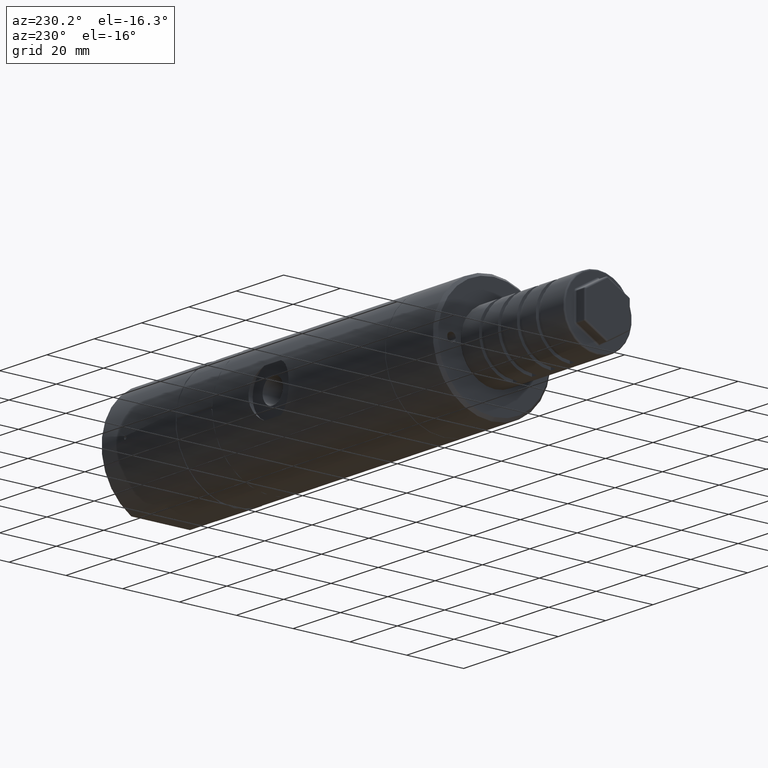
[diagram: clean part render]
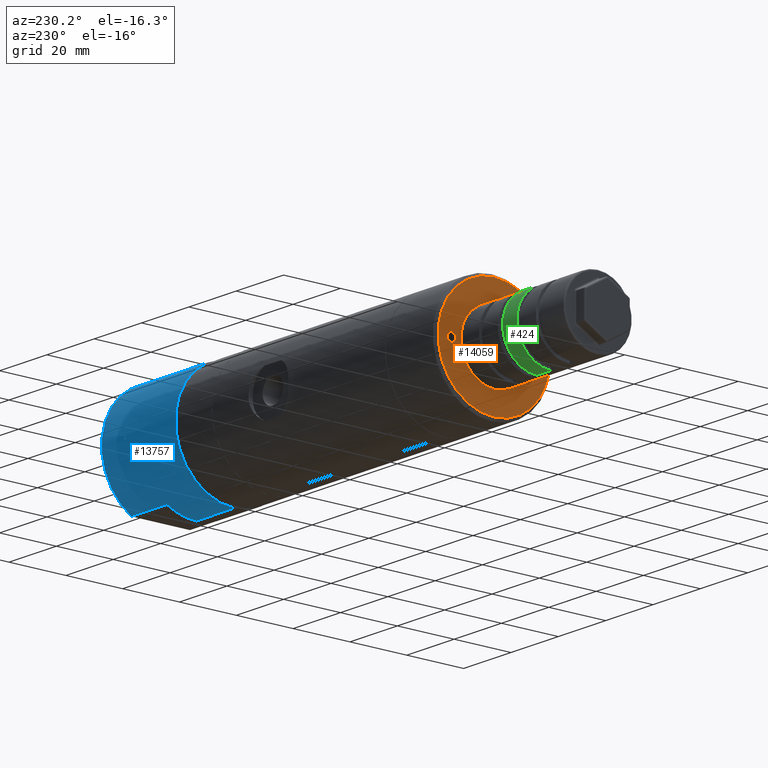
[diagram: same view with three faces highlighted in distinct colors, each labeled with its STEP entity id]
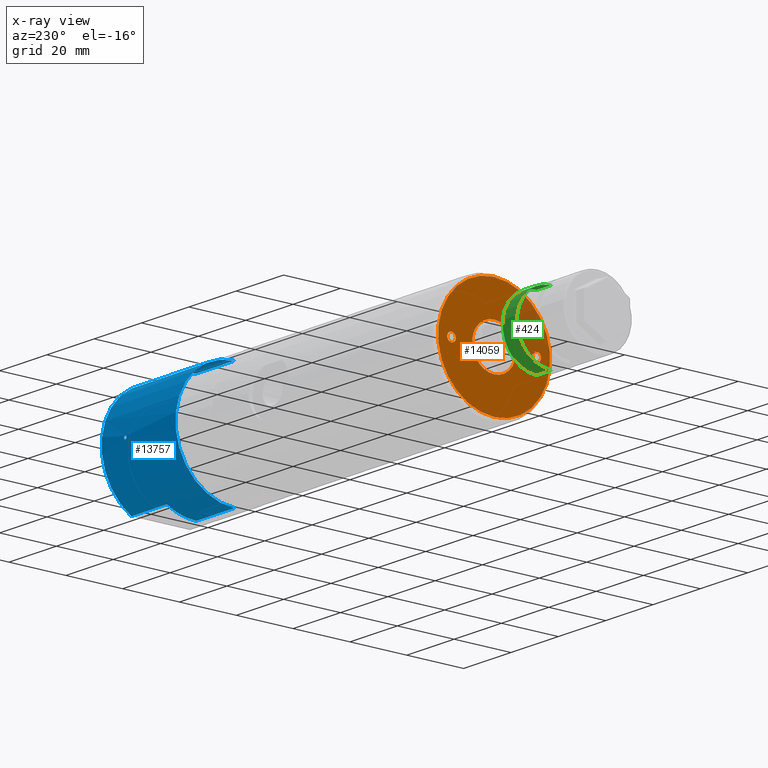
[diagram: x-ray of the same camera — body ghosted, the three highlighted faces saturated]
A machine part, auxiliary view with three faces highlighted in distinct colors.
The next image is the same camera in x-ray (body ghosted, the three faces saturated) — at least one of them is partly hidden behind the body in this view.
Their STEP definitions:

[orange] entity #14059 — the highlighted planar face has unit normal (-1, 0, 0).
#464 = VERTEX_POINT ( 'NONE', #7309 ) ;
#530 = DIRECTION ( 'NONE',  ( -1.000000000000000000, 0.0000000000000000000, 0.0000000000000000000 ) ) ;
#821 = EDGE_CURVE ( 'NONE', #7662, #8213, #11472, .T. ) ;
#872 = DIRECTION ( 'NONE',  ( 1.000000000000000000, 0.0000000000000000000, 0.0000000000000000000 ) ) ;
#913 = VERTEX_POINT ( 'NONE', #4446 ) ;
#997 = FACE_BOUND ( 'NONE', #9250, .T. ) ;
#1698 = EDGE_CURVE ( 'NONE', #5370, #16255, #13579, .T. ) ;
#1905 = FACE_OUTER_BOUND ( 'NONE', #12259, .T. ) ;
#1931 = EDGE_LOOP ( 'NONE', ( #5133, #14287 ) ) ;
#1994 = DIRECTION ( 'NONE',  ( 0.0000000000000000000, 0.0000000000000000000, 1.000000000000000000 ) ) ;
#2235 = AXIS2_PLACEMENT_3D ( 'NONE', #13592, #530, #16517 ) ;
#2476 = ORIENTED_EDGE ( 'NONE', *, *, #821, .F. ) ;
#3426 = CARTESIAN_POINT ( 'NONE',  ( -140.9000000000000100, 15.00000000000000000, -1.500000000000000000 ) ) ;
#3510 = EDGE_CURVE ( 'NONE', #464, #7442, #5842, .T. ) ;
#3809 = VERTEX_POINT ( 'NONE', #7743 ) ;
#3879 = EDGE_CURVE ( 'NONE', #913, #3809, #15428, .T. ) ;
#3914 = EDGE_CURVE ( 'NONE', #16255, #5370, #14051, .T. ) ;
#4192 = ORIENTED_EDGE ( 'NONE', *, *, #1698, .T. ) ;
#4436 = CARTESIAN_POINT ( 'NONE',  ( -140.9000000000000100, 0.0000000000000000000, 0.0000000000000000000 ) ) ;
#4446 = CARTESIAN_POINT ( 'NONE',  ( -140.9000000000000100, 0.0000000000000000000, -7.700000000000000200 ) ) ;
#4695 = ORIENTED_EDGE ( 'NONE', *, *, #5030, .T. ) ;
#4712 = DIRECTION ( 'NONE',  ( 0.0000000000000000000, 0.0000000000000000000, 1.000000000000000000 ) ) ;
#5030 = EDGE_CURVE ( 'NONE', #3809, #913, #18106, .T. ) ;
#5074 = DIRECTION ( 'NONE',  ( 1.000000000000000000, 0.0000000000000000000, 0.0000000000000000000 ) ) ;
#5133 = ORIENTED_EDGE ( 'NONE', *, *, #3510, .F. ) ;
#5370 = VERTEX_POINT ( 'NONE', #7182 ) ;
#5411 = DIRECTION ( 'NONE',  ( 0.0000000000000000000, 0.0000000000000000000, 1.000000000000000000 ) ) ;
#5584 = DIRECTION ( 'NONE',  ( 0.0000000000000000000, 0.0000000000000000000, -1.000000000000000000 ) ) ;
#5842 = CIRCLE ( 'NONE', #16377, 1.500000000000000000 ) ;
#6199 = DIRECTION ( 'NONE',  ( 0.0000000000000000000, 0.0000000000000000000, 1.000000000000000000 ) ) ;
#6422 = PLANE ( 'NONE',  #2235 ) ;
#6602 = CARTESIAN_POINT ( 'NONE',  ( -140.9000000000000100, 0.0000000000000000000, 0.0000000000000000000 ) ) ;
#6703 = AXIS2_PLACEMENT_3D ( 'NONE', #13830, #5074, #5584 ) ;
#6991 = CARTESIAN_POINT ( 'NONE',  ( -140.9000000000000100, 15.00000000000000000, 0.0000000000000000000 ) ) ;
#7182 = CARTESIAN_POINT ( 'NONE',  ( -140.9000000000000100, 2.479909768273390300E-015, 19.75000000000000000 ) ) ;
#7309 = CARTESIAN_POINT ( 'NONE',  ( -140.9000000000000100, -15.00000000000000000, 1.500000000000000000 ) ) ;
#7442 = VERTEX_POINT ( 'NONE', #13842 ) ;
#7570 = DIRECTION ( 'NONE',  ( -1.000000000000000000, 0.0000000000000000000, 0.0000000000000000000 ) ) ;
#7662 = VERTEX_POINT ( 'NONE', #3426 ) ;
#7743 = CARTESIAN_POINT ( 'NONE',  ( -140.9000000000000100, 9.429780353434619000E-016, 7.700000000000000200 ) ) ;
#7910 = AXIS2_PLACEMENT_3D ( 'NONE', #9097, #17633, #6199 ) ;
#8213 = VERTEX_POINT ( 'NONE', #14820 ) ;
#8432 = DIRECTION ( 'NONE',  ( -1.000000000000000000, 0.0000000000000000000, 0.0000000000000000000 ) ) ;
#8928 = FACE_BOUND ( 'NONE', #1931, .T. ) ;
#9097 = CARTESIAN_POINT ( 'NONE',  ( -140.9000000000000100, 15.00000000000000000, 0.0000000000000000000 ) ) ;
#9178 = EDGE_LOOP ( 'NONE', ( #11194, #2476 ) ) ;
#9250 = EDGE_LOOP ( 'NONE', ( #18531, #4695 ) ) ;
#9544 = CARTESIAN_POINT ( 'NONE',  ( -140.9000000000000100, 0.0000000000000000000, 0.0000000000000000000 ) ) ;
#9701 = ORIENTED_EDGE ( 'NONE', *, *, #3914, .T. ) ;
#10764 = DIRECTION ( 'NONE',  ( 0.0000000000000000000, 0.0000000000000000000, 1.000000000000000000 ) ) ;
#11194 = ORIENTED_EDGE ( 'NONE', *, *, #11339, .F. ) ;
#11339 = EDGE_CURVE ( 'NONE', #8213, #7662, #14080, .T. ) ;
#11472 = CIRCLE ( 'NONE', #18179, 1.500000000000000000 ) ;
#12151 = DIRECTION ( 'NONE',  ( -1.000000000000000000, 0.0000000000000000000, 0.0000000000000000000 ) ) ;
#12259 = EDGE_LOOP ( 'NONE', ( #9701, #4192 ) ) ;
#12380 = AXIS2_PLACEMENT_3D ( 'NONE', #9544, #872, #13566 ) ;
#12761 = FACE_BOUND ( 'NONE', #9178, .T. ) ;
#13566 = DIRECTION ( 'NONE',  ( 0.0000000000000000000, 0.0000000000000000000, -1.000000000000000000 ) ) ;
#13579 = CIRCLE ( 'NONE', #18544, 19.75000000000000000 ) ;
#13592 = CARTESIAN_POINT ( 'NONE',  ( -140.9000000000000100, -2.571673343026989900E-015, 0.0000000000000000000 ) ) ;
#13830 = CARTESIAN_POINT ( 'NONE',  ( -140.9000000000000100, 0.0000000000000000000, 0.0000000000000000000 ) ) ;
#13842 = CARTESIAN_POINT ( 'NONE',  ( -140.9000000000000100, -15.00000000000000000, -1.500000000000000000 ) ) ;
#14051 = CIRCLE ( 'NONE', #14421, 19.75000000000000000 ) ;
#14059 = ADVANCED_FACE ( 'NONE', ( #1905, #12761, #8928, #997 ), #6422, .T. ) ;
#14080 = CIRCLE ( 'NONE', #7910, 1.500000000000000000 ) ;
#14266 = DIRECTION ( 'NONE',  ( 0.0000000000000000000, 0.0000000000000000000, 1.000000000000000000 ) ) ;
#14287 = ORIENTED_EDGE ( 'NONE', *, *, #15730, .F. ) ;
#14421 = AXIS2_PLACEMENT_3D ( 'NONE', #4436, #17267, #14266 ) ;
#14748 = CARTESIAN_POINT ( 'NONE',  ( -140.9000000000000100, -15.00000000000000000, 0.0000000000000000000 ) ) ;
#14820 = CARTESIAN_POINT ( 'NONE',  ( -140.9000000000000100, 15.00000000000000000, 1.500000000000000000 ) ) ;
#14946 = DIRECTION ( 'NONE',  ( -1.000000000000000000, 0.0000000000000000000, 0.0000000000000000000 ) ) ;
#14957 = AXIS2_PLACEMENT_3D ( 'NONE', #16203, #7570, #4712 ) ;
#15428 = CIRCLE ( 'NONE', #6703, 7.700000000000000200 ) ;
#15730 = EDGE_CURVE ( 'NONE', #7442, #464, #17515, .T. ) ;
#16203 = CARTESIAN_POINT ( 'NONE',  ( -140.9000000000000100, -15.00000000000000000, 0.0000000000000000000 ) ) ;
#16255 = VERTEX_POINT ( 'NONE', #18330 ) ;
#16377 = AXIS2_PLACEMENT_3D ( 'NONE', #14748, #14946, #1994 ) ;
#16517 = DIRECTION ( 'NONE',  ( 0.0000000000000000000, 0.0000000000000000000, 1.000000000000000000 ) ) ;
#17267 = DIRECTION ( 'NONE',  ( -1.000000000000000000, 0.0000000000000000000, 0.0000000000000000000 ) ) ;
#17515 = CIRCLE ( 'NONE', #14957, 1.500000000000000000 ) ;
#17633 = DIRECTION ( 'NONE',  ( -1.000000000000000000, 0.0000000000000000000, 0.0000000000000000000 ) ) ;
#18106 = CIRCLE ( 'NONE', #12380, 7.700000000000000200 ) ;
#18179 = AXIS2_PLACEMENT_3D ( 'NONE', #6991, #8432, #5411 ) ;
#18330 = CARTESIAN_POINT ( 'NONE',  ( -140.9000000000000100, 0.0000000000000000000, -19.75000000000000000 ) ) ;
#18531 = ORIENTED_EDGE ( 'NONE', *, *, #3879, .T. ) ;
#18544 = AXIS2_PLACEMENT_3D ( 'NONE', #6602, #12151, #10764 ) ;

[blue] entity #13757 — the highlighted cylindrical surface (partial cylindrical patch) has radius 20.75 mm, axis along (1, 0, 0).
#156 = CARTESIAN_POINT ( 'NONE',  ( -10.44604755749227800, 20.74856506021907200, 0.2609280402185664100 ) ) ;
#207 = VERTEX_POINT ( 'NONE', #6639 ) ;
#339 = CARTESIAN_POINT ( 'NONE',  ( -10.13211990749544900, 20.74397502890900200, 0.4999999999999901200 ) ) ;
#388 = CARTESIAN_POINT ( 'NONE',  ( -15.00000000000000000, 0.0000000000000000000, -20.75000000000000000 ) ) ;
#656 = EDGE_CURVE ( 'NONE', #1961, #207, #5594, .T. ) ;
#677 = CARTESIAN_POINT ( 'NONE',  ( 0.0000000000000000000, 0.0000000000000000000, -20.75000000000000000 ) ) ;
#1180 = CARTESIAN_POINT ( 'NONE',  ( 0.0000000000000000000, 10.32291141103128000, -18.00000000000000000 ) ) ;
#1194 = CARTESIAN_POINT ( 'NONE',  ( -31.19999999999999900, 2.541142108230757900E-015, 20.75000000000000000 ) ) ;
#1349 = VERTEX_POINT ( 'NONE', #6614 ) ;
#1525 = DIRECTION ( 'NONE',  ( 0.0000000000000000000, 0.0000000000000000000, -1.000000000000000000 ) ) ;
#1536 = AXIS2_PLACEMENT_3D ( 'NONE', #2053, #3325, #4916 ) ;
#1643 = EDGE_CURVE ( 'NONE', #11486, #1961, #2519, .T. ) ;
#1714 = CARTESIAN_POINT ( 'NONE',  ( -10.26104699346439600, 20.74541242341451100, -0.4459296760356511500 ) ) ;
#1720 = CARTESIAN_POINT ( 'NONE',  ( -9.999999999999737100, 20.74397502890893500, -0.5000000000026035800 ) ) ;
#1798 = CARTESIAN_POINT ( 'NONE',  ( 0.0000000000000000000, 0.0000000000000000000, 0.0000000000000000000 ) ) ;
#1961 = VERTEX_POINT ( 'NONE', #1194 ) ;
#2053 = CARTESIAN_POINT ( 'NONE',  ( -15.00000000000000000, 0.0000000000000000000, 0.0000000000000000000 ) ) ;
#2177 = EDGE_CURVE ( 'NONE', #207, #4132, #7503, .T. ) ;
#2192 = CARTESIAN_POINT ( 'NONE',  ( 0.0000000000000000000, 0.0000000000000000000, 0.0000000000000000000 ) ) ;
#2198 = B_SPLINE_CURVE_WITH_KNOTS ( 'NONE', 3,
 ( #16127, #5854, #1714, #4630, #7549, #15954, #156, #17652, #339, #2994 ),
 .UNSPECIFIED., .F., .F.,
 ( 4, 2, 2, 2, 4 ),
 ( 0.001563285098166953300, 0.001954017975861652900, 0.002344750853556352800, 0.002735483731251052300, 0.003126216608945752100 ),
 .UNSPECIFIED. ) ;
#2519 = CIRCLE ( 'NONE', #16961, 20.75000000000000000 ) ;
#2574 = ORIENTED_EDGE ( 'NONE', *, *, #9472, .T. ) ;
#2863 = CARTESIAN_POINT ( 'NONE',  ( -31.19999999999999900, 0.0000000000000000000, 0.0000000000000000000 ) ) ;
#2923 = DIRECTION ( 'NONE',  ( 1.000000000000000000, 0.0000000000000000000, 0.0000000000000000000 ) ) ;
#2994 = CARTESIAN_POINT ( 'NONE',  ( -10.00000000000000000, 20.74397502890899900, 0.4999999999999900100 ) ) ;
#3135 = DIRECTION ( 'NONE',  ( 1.000000000000000000, 0.0000000000000000000, 0.0000000000000000000 ) ) ;
#3282 = CARTESIAN_POINT ( 'NONE',  ( -15.00000000000000000, 0.0000000000000000000, 0.0000000000000000000 ) ) ;
#3325 = DIRECTION ( 'NONE',  ( -1.000000000000000000, -0.0000000000000000000, -0.0000000000000000000 ) ) ;
#3388 = CARTESIAN_POINT ( 'NONE',  ( -10.00000000000000000, 20.74397502890899900, 0.4999999999999900100 ) ) ;
#3411 = DIRECTION ( 'NONE',  ( -1.000000000000000000, -0.0000000000000000000, -0.0000000000000000000 ) ) ;
#3534 = AXIS2_PLACEMENT_3D ( 'NONE', #3282, #3411, #12001 ) ;
#3719 = CIRCLE ( 'NONE', #6011, 20.75000000000000000 ) ;
#4050 = ORIENTED_EDGE ( 'NONE', *, *, #8139, .F. ) ;
#4132 = VERTEX_POINT ( 'NONE', #14231 ) ;
#4179 = VECTOR ( 'NONE', #10794, 1000.000000000000000 ) ;
#4630 = CARTESIAN_POINT ( 'NONE',  ( -10.44556131245091800, 20.74855455129144500, -0.2616752292691743600 ) ) ;
#4916 = DIRECTION ( 'NONE',  ( 0.0000000000000000000, 0.0000000000000000000, -1.000000000000000000 ) ) ;
#4972 = VERTEX_POINT ( 'NONE', #12309 ) ;
#5175 = FACE_BOUND ( 'NONE', #10076, .T. ) ;
#5419 = CARTESIAN_POINT ( 'NONE',  ( -9.553030435657641200, 20.74858003781440300, -0.2600923847629472200 ) ) ;
#5468 = ORIENTED_EDGE ( 'NONE', *, *, #14866, .F. ) ;
#5594 = LINE ( 'NONE', #16384, #11002 ) ;
#5854 = CARTESIAN_POINT ( 'NONE',  ( -10.13050407112609500, 20.74397502890899500, -0.5000000000001018100 ) ) ;
#6011 = AXIS2_PLACEMENT_3D ( 'NONE', #1798, #3135, #7632 ) ;
#6325 = FACE_OUTER_BOUND ( 'NONE', #7663, .T. ) ;
#6614 = CARTESIAN_POINT ( 'NONE',  ( 0.0000000000000000000, 10.32291141103128000, 18.00000000000000000 ) ) ;
#6639 = CARTESIAN_POINT ( 'NONE',  ( -15.00000000000000000, 2.541142108230757900E-015, 20.75000000000000000 ) ) ;
#6732 = EDGE_CURVE ( 'NONE', #13668, #4972, #13081, .T. ) ;
#6731 = AXIS2_PLACEMENT_3D ( 'NONE', #2192, #9534, #16597 ) ;
#6929 = CARTESIAN_POINT ( 'NONE',  ( -9.739693090617528500, 20.74539832062074800, -0.4468446631524425900 ) ) ;
#7503 = CIRCLE ( 'NONE', #3534, 20.75000000000000000 ) ;
#7549 = CARTESIAN_POINT ( 'NONE',  ( -10.49988927261461700, 20.74999733187117100, -0.1322965031529124100 ) ) ;
#7632 = DIRECTION ( 'NONE',  ( 0.0000000000000000000, 0.0000000000000000000, -1.000000000000000000 ) ) ;
#7663 = EDGE_LOOP ( 'NONE', ( #11455, #15751, #12199, #2574, #12730, #14970, #13390, #4050 ) ) ;
#7819 = CARTESIAN_POINT ( 'NONE',  ( -9.499953741187557200, 20.75000111467011300, -0.1302750828207010800 ) ) ;
#8139 = EDGE_CURVE ( 'NONE', #11486, #16062, #12323, .T. ) ;
#8530 = DIRECTION ( 'NONE',  ( -1.000000000000000000, -0.0000000000000000000, -0.0000000000000000000 ) ) ;
#9472 = EDGE_CURVE ( 'NONE', #4132, #1349, #11381, .T. ) ;
#9534 = DIRECTION ( 'NONE',  ( 1.000000000000000000, 0.0000000000000000000, 0.0000000000000000000 ) ) ;
#10076 = EDGE_LOOP ( 'NONE', ( #15511, #5468 ) ) ;
#10794 = DIRECTION ( 'NONE',  ( 1.000000000000000000, 0.0000000000000000000, 0.0000000000000000000 ) ) ;
#11002 = VECTOR ( 'NONE', #12213, 1000.000000000000000 ) ;
#11381 = LINE ( 'NONE', #15817, #12735 ) ;
#11455 = ORIENTED_EDGE ( 'NONE', *, *, #1643, .T. ) ;
#11486 = VERTEX_POINT ( 'NONE', #11929 ) ;
#11590 = CARTESIAN_POINT ( 'NONE',  ( -9.869466404486766800, 20.74397502890900600, -0.4999999999998783800 ) ) ;
#11813 = CARTESIAN_POINT ( 'NONE',  ( -9.738631353495502900, 20.74541651414586200, 0.4457711486193378100 ) ) ;
#11929 = CARTESIAN_POINT ( 'NONE',  ( -31.19999999999999900, 0.0000000000000000000, -20.75000000000000000 ) ) ;
#12001 = DIRECTION ( 'NONE',  ( 0.0000000000000000000, 0.0000000000000000000, -1.000000000000000000 ) ) ;
#12199 = ORIENTED_EDGE ( 'NONE', *, *, #2177, .T. ) ;
#12213 = DIRECTION ( 'NONE',  ( 1.000000000000000000, 0.0000000000000000000, 0.0000000000000000000 ) ) ;
#12309 = CARTESIAN_POINT ( 'NONE',  ( -15.00000000000000000, 10.32291141103128000, -18.00000000000000000 ) ) ;
#12323 = LINE ( 'NONE', #677, #4179 ) ;
#12487 = EDGE_CURVE ( 'NONE', #18681, #18112, #17766, .T. ) ;
#12632 = VECTOR ( 'NONE', #8530, 1000.000000000000000 ) ;
#12730 = ORIENTED_EDGE ( 'NONE', *, *, #15690, .F. ) ;
#12735 = VECTOR ( 'NONE', #17201, 1000.000000000000000 ) ;
#13081 = LINE ( 'NONE', #1180, #12632 ) ;
#13390 = ORIENTED_EDGE ( 'NONE', *, *, #18655, .T. ) ;
#13668 = VERTEX_POINT ( 'NONE', #17887 ) ;
#13757 = ADVANCED_FACE ( 'NONE', ( #5175, #6325 ), #15214, .T. ) ;
#13954 = CARTESIAN_POINT ( 'NONE',  ( -10.00000000000000000, 20.74397502890899900, 0.4999999999999900100 ) ) ;
#14025 = CIRCLE ( 'NONE', #1536, 20.75000000000000000 ) ;
#14231 = CARTESIAN_POINT ( 'NONE',  ( -15.00000000000000000, 10.32291141103128000, 18.00000000000000000 ) ) ;
#14866 = EDGE_CURVE ( 'NONE', #18112, #18681, #2198, .T. ) ;
#14970 = ORIENTED_EDGE ( 'NONE', *, *, #6732, .T. ) ;
#15214 = CYLINDRICAL_SURFACE ( 'NONE', #6731, 20.75000000000000000 ) ;
#15511 = ORIENTED_EDGE ( 'NONE', *, *, #12487, .F. ) ;
#15690 = EDGE_CURVE ( 'NONE', #13668, #1349, #3719, .T. ) ;
#15751 = ORIENTED_EDGE ( 'NONE', *, *, #656, .T. ) ;
#15817 = CARTESIAN_POINT ( 'NONE',  ( 0.0000000000000000000, 10.32291141103128000, 18.00000000000000000 ) ) ;
#15954 = CARTESIAN_POINT ( 'NONE',  ( -10.50011037601901300, 20.75000265966217600, 0.1314582116863800600 ) ) ;
#16008 = CARTESIAN_POINT ( 'NONE',  ( -9.999999999999737100, 20.74397502890893500, -0.5000000000026035800 ) ) ;
#16062 = VERTEX_POINT ( 'NONE', #388 ) ;
#16127 = CARTESIAN_POINT ( 'NONE',  ( -9.999999999999737100, 20.74397502890893500, -0.5000000000026035800 ) ) ;
#16359 = CARTESIAN_POINT ( 'NONE',  ( -9.554135325371785100, 20.74856110876369500, 0.2612090699720744900 ) ) ;
#16384 = CARTESIAN_POINT ( 'NONE',  ( 0.0000000000000000000, 2.541142108230757900E-015, 20.75000000000000000 ) ) ;
#16597 = DIRECTION ( 'NONE',  ( 0.0000000000000000000, 0.0000000000000000000, -1.000000000000000000 ) ) ;
#16961 = AXIS2_PLACEMENT_3D ( 'NONE', #2863, #2923, #1525 ) ;
#17201 = DIRECTION ( 'NONE',  ( 1.000000000000000000, 0.0000000000000000000, 0.0000000000000000000 ) ) ;
#17255 = CARTESIAN_POINT ( 'NONE',  ( -9.867850202562033600, 20.74397502890900600, 0.4999999999999899500 ) ) ;
#17652 = CARTESIAN_POINT ( 'NONE',  ( -10.26156081116187800, 20.74541895678499900, 0.4456767974457160900 ) ) ;
#17688 = CARTESIAN_POINT ( 'NONE',  ( -9.500046321769595200, 20.74999888381284700, 0.1306299268167532800 ) ) ;
#17766 = B_SPLINE_CURVE_WITH_KNOTS ( 'NONE', 3,
 ( #13954, #17255, #11813, #16359, #17688, #7819, #5419, #6929, #11590, #1720 ),
 .UNSPECIFIED., .F., .F.,
 ( 4, 2, 2, 2, 4 ),
 ( 0.0000000000000000000, 0.0003908212745417383200, 0.0007816425490834766400, 0.001172463823625215000, 0.001563285098166953300 ),
 .UNSPECIFIED. ) ;
#17887 = CARTESIAN_POINT ( 'NONE',  ( 0.0000000000000000000, 10.32291141103128000, -18.00000000000000000 ) ) ;
#18112 = VERTEX_POINT ( 'NONE', #16008 ) ;
#18655 = EDGE_CURVE ( 'NONE', #4972, #16062, #14025, .T. ) ;
#18681 = VERTEX_POINT ( 'NONE', #3388 ) ;

[green] entity #424 — the highlighted cylindrical surface (partial cylindrical patch) has radius 12 mm, axis along (1, 0, 0).
#424 = ADVANCED_FACE ( 'NONE', ( #6718 ), #9898, .T. ) ;
#1407 = CARTESIAN_POINT ( 'NONE',  ( -184.9000000000000100, 0.0000000000000000000, 0.0000000000000000000 ) ) ;
#2344 = CIRCLE ( 'NONE', #15806, 12.00000000000000000 ) ;
#2706 = AXIS2_PLACEMENT_3D ( 'NONE', #7473, #14764, #11746 ) ;
#2913 = VECTOR ( 'NONE', #7132, 1000.000000000000000 ) ;
#3188 = CARTESIAN_POINT ( 'NONE',  ( -184.9000000000000100, -3.330669073875468400E-015, -12.00000000000000000 ) ) ;
#4013 = CARTESIAN_POINT ( 'NONE',  ( -184.9000000000000100, 4.800245232852292200E-015, 12.00000000000000000 ) ) ;
#4188 = DIRECTION ( 'NONE',  ( -1.000000000000000000, 0.0000000000000000000, 0.0000000000000000000 ) ) ;
#4264 = DIRECTION ( 'NONE',  ( 0.0000000000000000000, -2.775557561562890400E-016, -1.000000000000000000 ) ) ;
#5493 = ORIENTED_EDGE ( 'NONE', *, *, #10063, .T. ) ;
#5604 = DIRECTION ( 'NONE',  ( 1.000000000000000000, 0.0000000000000000000, 0.0000000000000000000 ) ) ;
#6718 = FACE_OUTER_BOUND ( 'NONE', #16964, .T. ) ;
#7121 = VERTEX_POINT ( 'NONE', #16092 ) ;
#7132 = DIRECTION ( 'NONE',  ( 1.000000000000000000, 0.0000000000000000000, 0.0000000000000000000 ) ) ;
#7396 = VERTEX_POINT ( 'NONE', #15368 ) ;
#7473 = CARTESIAN_POINT ( 'NONE',  ( -164.8999999999999800, 0.0000000000000000000, 0.0000000000000000000 ) ) ;
#8433 = CARTESIAN_POINT ( 'NONE',  ( -158.9000000000000100, 0.0000000000000000000, 0.0000000000000000000 ) ) ;
#8857 = AXIS2_PLACEMENT_3D ( 'NONE', #1407, #5604, #4264 ) ;
#8873 = DIRECTION ( 'NONE',  ( 1.000000000000000000, 0.0000000000000000000, 0.0000000000000000000 ) ) ;
#9021 = ORIENTED_EDGE ( 'NONE', *, *, #14731, .T. ) ;
#9668 = VERTEX_POINT ( 'NONE', #14184 ) ;
#9898 = CYLINDRICAL_SURFACE ( 'NONE', #8857, 12.00000000000000000 ) ;
#10063 = EDGE_CURVE ( 'NONE', #7396, #9668, #14887, .T. ) ;
#10276 = CIRCLE ( 'NONE', #2706, 12.00000000000000000 ) ;
#10814 = EDGE_CURVE ( 'NONE', #7121, #11984, #15481, .T. ) ;
#11390 = EDGE_CURVE ( 'NONE', #7396, #7121, #10276, .T. ) ;
#11400 = CARTESIAN_POINT ( 'NONE',  ( -158.9000000000000100, -1.861092914898645100E-015, -12.00000000000000000 ) ) ;
#11746 = DIRECTION ( 'NONE',  ( 0.0000000000000000000, 2.775557561562890400E-016, 1.000000000000000000 ) ) ;
#11984 = VERTEX_POINT ( 'NONE', #11400 ) ;
#13539 = ORIENTED_EDGE ( 'NONE', *, *, #11390, .F. ) ;
#14184 = CARTESIAN_POINT ( 'NONE',  ( -158.9000000000000100, 3.330669073875470000E-015, 12.00000000000000000 ) ) ;
#14277 = DIRECTION ( 'NONE',  ( 0.0000000000000000000, 2.775557561562890400E-016, 1.000000000000000000 ) ) ;
#14731 = EDGE_CURVE ( 'NONE', #9668, #11984, #2344, .T. ) ;
#14764 = DIRECTION ( 'NONE',  ( -1.000000000000000000, 0.0000000000000000000, 0.0000000000000000000 ) ) ;
#14887 = LINE ( 'NONE', #4013, #2913 ) ;
#15018 = VECTOR ( 'NONE', #8873, 1000.000000000000000 ) ;
#15368 = CARTESIAN_POINT ( 'NONE',  ( -164.8999999999999800, 3.330669073875470000E-015, 12.00000000000000000 ) ) ;
#15481 = LINE ( 'NONE', #3188, #15018 ) ;
#15806 = AXIS2_PLACEMENT_3D ( 'NONE', #8433, #4188, #14277 ) ;
#16092 = CARTESIAN_POINT ( 'NONE',  ( -164.8999999999999800, -1.861092914898645100E-015, -12.00000000000000000 ) ) ;
#16964 = EDGE_LOOP ( 'NONE', ( #13539, #5493, #9021, #18047 ) ) ;
#18047 = ORIENTED_EDGE ( 'NONE', *, *, #10814, .F. ) ;